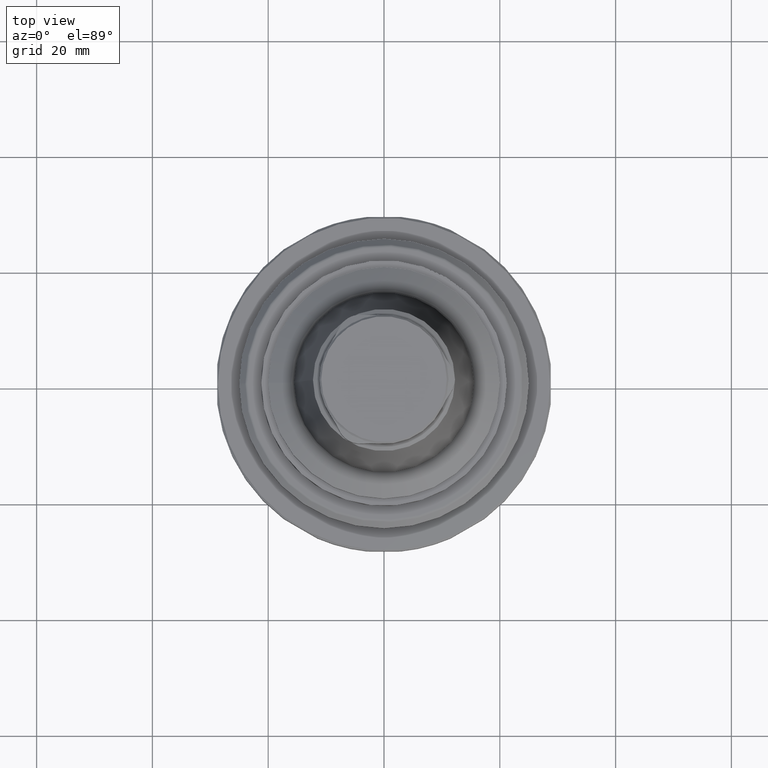
[diagram: clean part render]
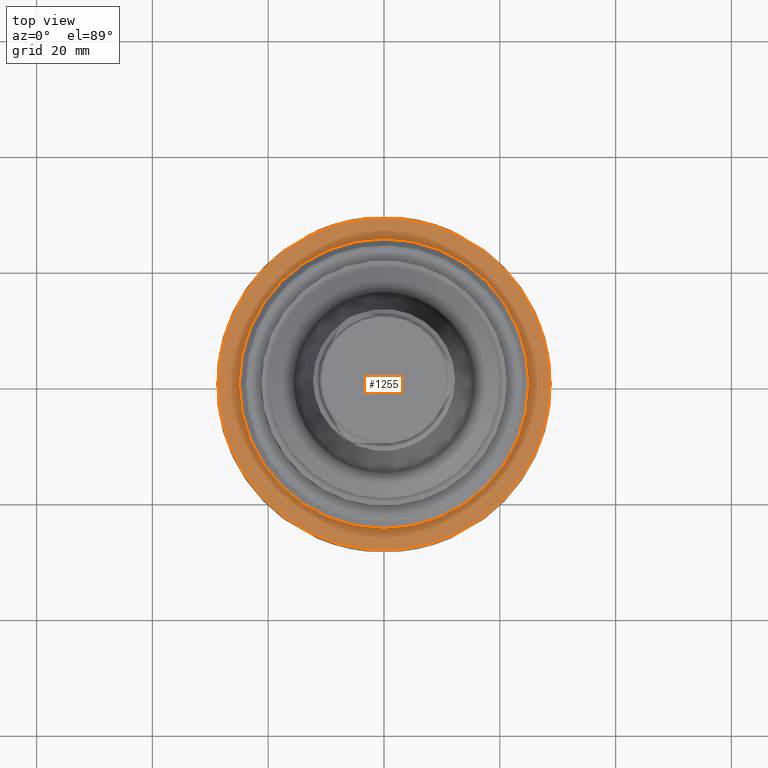
[diagram: same view with one face highlighted and labeled with its STEP entity id]
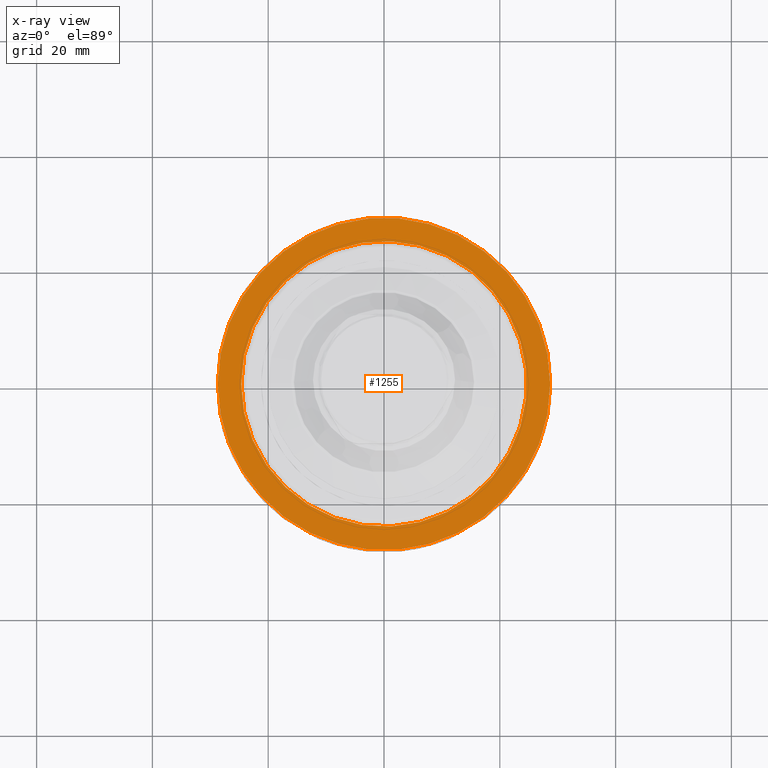
[diagram: x-ray of the same camera — body ghosted, the highlighted face saturated]
A machine part, top view. The second image highlights one B-rep face of the part: STEP entity #1255.
The next image is the same camera in x-ray: the body ghosted, the highlighted face saturated — about 0% of this face is hidden behind the body in this view.
In plain terms, the highlighted planar face has unit normal (0, 0, -1).
Its self-contained STEP definition (entity closure, byte-faithful):
#73=CIRCLE('',#1382,24.65);
#74=CIRCLE('',#1384,28.7);
#324=ORIENTED_EDGE('',*,*,#632,.T.);
#325=ORIENTED_EDGE('',*,*,#633,.F.);
#632=EDGE_CURVE('',#794,#794,#73,.T.);
#633=EDGE_CURVE('',#795,#795,#74,.T.);
#794=VERTEX_POINT('',#2018);
#795=VERTEX_POINT('',#2021);
#973=EDGE_LOOP('',(#324));
#974=EDGE_LOOP('',(#325));
#1109=FACE_BOUND('',#973,.T.);
#1110=FACE_BOUND('',#974,.T.);
#1213=PLANE('',#1383);
#1255=ADVANCED_FACE('',(#1109,#1110),#1213,.F.);
#1382=AXIS2_PLACEMENT_3D('',#2017,#1609,#1610);
#1383=AXIS2_PLACEMENT_3D('',#2019,#1611,#1612);
#1384=AXIS2_PLACEMENT_3D('',#2020,#1613,#1614);
#1609=DIRECTION('',(1.22464605849178E-16,1.04225259501902E-17,-1.));
#1610=DIRECTION('',(-1.,-5.54667823983524E-32,-1.22464605849178E-16));
#1611=DIRECTION('',(1.22464605849178E-16,1.04225259501902E-17,-1.));
#1612=DIRECTION('',(-1.,-5.54667823983524E-32,-1.22464605849178E-16));
#1613=DIRECTION('',(1.22464605849178E-16,1.04225259501902E-17,-1.));
#1614=DIRECTION('',(-1.,-5.54667823983524E-32,-1.22464605849178E-16));
#2017=CARTESIAN_POINT('',(5.4999448159755E-15,9.3802733551713E-17,-1.00000000000002));
#2018=CARTESIAN_POINT('',(-24.65,9.38027335517117E-17,-1.00000000000002));
#2019=CARTESIAN_POINT('',(-24.65,9.38027335517117E-17,-1.00000000000002));
#2020=CARTESIAN_POINT('',(5.4999448159755E-15,9.3802733551713E-17,-1.00000000000002));
#2021=CARTESIAN_POINT('',(-28.7,9.38027335517114E-17,-1.00000000000002));